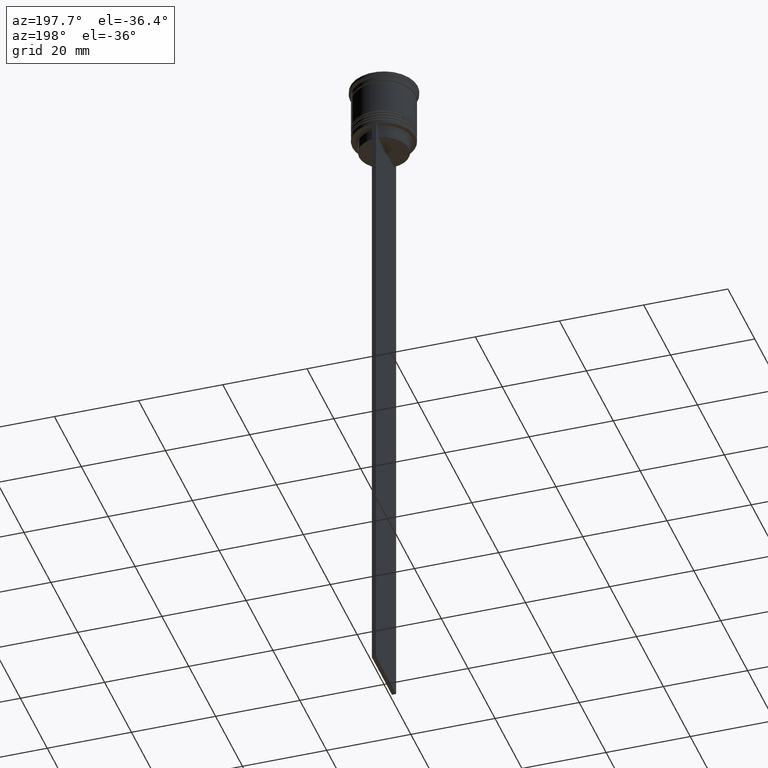
[diagram: clean part render]
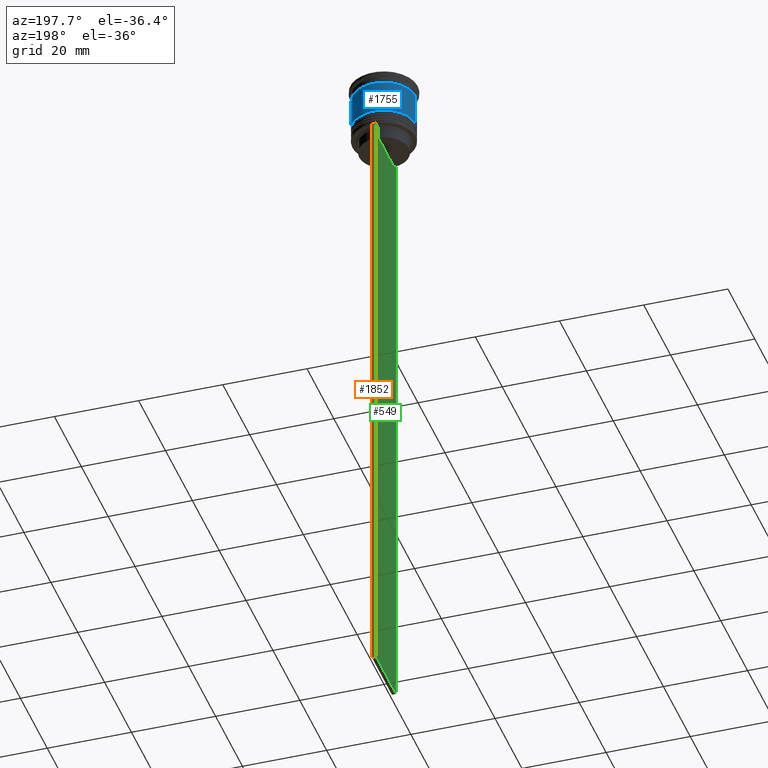
[diagram: same view with three faces highlighted in distinct colors, each labeled with its STEP entity id]
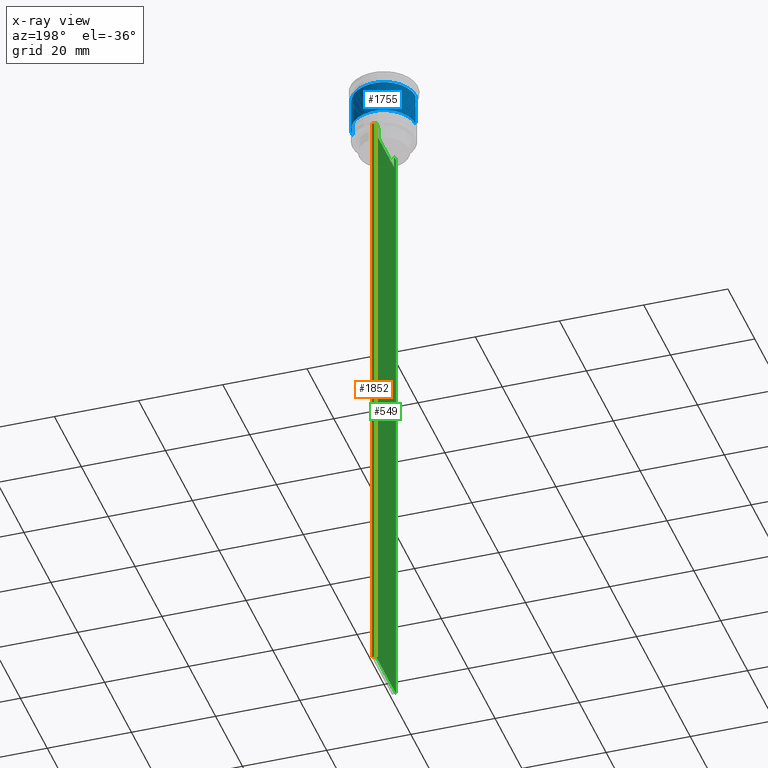
[diagram: x-ray of the same camera — body ghosted, the three highlighted faces saturated]
A machine part, auxiliary view with three faces highlighted in distinct colors.
The next image is the same camera in x-ray (body ghosted, the three faces saturated) — at least one of them is partly hidden behind the body in this view.
Their STEP definitions:

[orange] entity #1852 — the highlighted planar face has unit normal (0, -1, -0).
#215 = VECTOR ( 'NONE', #385, 1000.000000000000000 ) ;
#240 = ORIENTED_EDGE ( 'NONE', *, *, #561, .T. ) ;
#261 = ORIENTED_EDGE ( 'NONE', *, *, #1885, .T. ) ;
#277 = ORIENTED_EDGE ( 'NONE', *, *, #691, .T. ) ;
#287 = VERTEX_POINT ( 'NONE', #789 ) ;
#385 = DIRECTION ( 'NONE',  ( 0.000000000000000000, 0.000000000000000000, -1.000000000000000000 ) ) ;
#483 = DIRECTION ( 'NONE',  ( 1.000000000000000000, 0.000000000000000000, 0.000000000000000000 ) ) ;
#547 = DIRECTION ( 'NONE',  ( 0.000000000000000000, 0.000000000000000000, -1.000000000000000000 ) ) ;
#550 = DIRECTION ( 'NONE',  ( -1.000000000000000000, 0.000000000000000000, 0.000000000000000000 ) ) ;
#561 = EDGE_CURVE ( 'NONE', #932, #1043, #1056, .T. ) ;
#654 = VECTOR ( 'NONE', #550, 1000.000000000000000 ) ;
#683 = CARTESIAN_POINT ( 'NONE',  ( 0.5000000000000000000, 7.500000000000002665, -14.00000000000000178 ) ) ;
#691 = EDGE_CURVE ( 'NONE', #742, #287, #2253, .T. ) ;
#742 = VERTEX_POINT ( 'NONE', #2462 ) ;
#789 = CARTESIAN_POINT ( 'NONE',  ( -0.5000000000000000000, 7.500000000000002665, -163.9999999999999716 ) ) ;
#795 = EDGE_CURVE ( 'NONE', #932, #287, #927, .T. ) ;
#927 = LINE ( 'NONE', #1723, #215 ) ;
#932 = VERTEX_POINT ( 'NONE', #1612 ) ;
#1043 = VERTEX_POINT ( 'NONE', #1065 ) ;
#1056 = LINE ( 'NONE', #683, #2367 ) ;
#1065 = CARTESIAN_POINT ( 'NONE',  ( 0.5000000000000000000, 7.500000000000002665, -14.00000000000000178 ) ) ;
#1150 = VECTOR ( 'NONE', #547, 1000.000000000000000 ) ;
#1227 = FACE_OUTER_BOUND ( 'NONE', #1583, .T. ) ;
#1295 = CARTESIAN_POINT ( 'NONE',  ( 0.5000000000000000000, 7.500000000000002665, 1.033296378372908997 ) ) ;
#1307 = DIRECTION ( 'NONE',  ( 0.000000000000000000, -1.000000000000000000, -0.000000000000000000 ) ) ;
#1310 = CARTESIAN_POINT ( 'NONE',  ( 0.5000000000000000000, 7.500000000000002665, -163.9999999999999716 ) ) ;
#1321 = LINE ( 'NONE', #1295, #1150 ) ;
#1331 = ORIENTED_EDGE ( 'NONE', *, *, #795, .F. ) ;
#1509 = AXIS2_PLACEMENT_3D ( 'NONE', #1894, #1307, #1513 ) ;
#1513 = DIRECTION ( 'NONE',  ( 0.000000000000000000, 0.000000000000000000, -1.000000000000000000 ) ) ;
#1583 = EDGE_LOOP ( 'NONE', ( #1331, #240, #261, #277 ) ) ;
#1612 = CARTESIAN_POINT ( 'NONE',  ( -0.5000000000000000000, 7.500000000000002665, -14.00000000000000178 ) ) ;
#1723 = CARTESIAN_POINT ( 'NONE',  ( -0.5000000000000000000, 7.500000000000002665, 1.033296378372908997 ) ) ;
#1852 = ADVANCED_FACE ( 'NONE', ( #1227 ), #1995, .F. ) ;
#1885 = EDGE_CURVE ( 'NONE', #1043, #742, #1321, .T. ) ;
#1894 = CARTESIAN_POINT ( 'NONE',  ( 0.5000000000000000000, 7.500000000000002665, 1.033296378372908997 ) ) ;
#1995 = PLANE ( 'NONE',  #1509 ) ;
#2253 = LINE ( 'NONE', #1310, #654 ) ;
#2367 = VECTOR ( 'NONE', #483, 1000.000000000000000 ) ;
#2462 = CARTESIAN_POINT ( 'NONE',  ( 0.5000000000000000000, 7.500000000000002665, -163.9999999999999716 ) ) ;

[blue] entity #1755 — the highlighted cylindrical surface (edge-blend (fillet) strip) has radius 7.5 mm, axis along (-0, -0, 1).
#15 = CARTESIAN_POINT ( 'NONE',  ( 0.000000000000000000, 0.000000000000000000, 0.000000000000000000 ) ) ;
#211 = ORIENTED_EDGE ( 'NONE', *, *, #577, .F. ) ;
#216 = EDGE_LOOP ( 'NONE', ( #344, #1059, #211, #985 ) ) ;
#251 = CARTESIAN_POINT ( 'NONE',  ( 0.000000000000000000, 0.000000000000000000, -10.50000000000000000 ) ) ;
#343 = CIRCLE ( 'NONE', #2042, 7.499999999999998224 ) ;
#344 = ORIENTED_EDGE ( 'NONE', *, *, #411, .T. ) ;
#366 = EDGE_CURVE ( 'NONE', #1479, #2133, #1168, .T. ) ;
#411 = EDGE_CURVE ( 'NONE', #1479, #1863, #458, .T. ) ;
#458 = CIRCLE ( 'NONE', #584, 7.500000000000001776 ) ;
#539 = CARTESIAN_POINT ( 'NONE',  ( 7.500000000000000000, 0.000000000000000000, 0.000000000000000000 ) ) ;
#577 = EDGE_CURVE ( 'NONE', #2133, #796, #343, .T. ) ;
#584 = AXIS2_PLACEMENT_3D ( 'NONE', #251, #1421, #1221 ) ;
#610 = FACE_OUTER_BOUND ( 'NONE', #216, .T. ) ;
#796 = VERTEX_POINT ( 'NONE', #1694 ) ;
#901 = DIRECTION ( 'NONE',  ( -0.000000000000000000, -0.000000000000000000, 1.000000000000000000 ) ) ;
#985 = ORIENTED_EDGE ( 'NONE', *, *, #366, .F. ) ;
#1019 = LINE ( 'NONE', #1872, #2411 ) ;
#1059 = ORIENTED_EDGE ( 'NONE', *, *, #2116, .T. ) ;
#1099 = CARTESIAN_POINT ( 'NONE',  ( -7.500000000000001776, 9.184850993605149917E-16, -10.50000000000000000 ) ) ;
#1168 = LINE ( 'NONE', #539, #2165 ) ;
#1221 = DIRECTION ( 'NONE',  ( 1.000000000000000000, 0.000000000000000000, 0.000000000000000000 ) ) ;
#1421 = DIRECTION ( 'NONE',  ( -0.000000000000000000, -0.000000000000000000, 1.000000000000000000 ) ) ;
#1452 = DIRECTION ( 'NONE',  ( -0.000000000000000000, -0.000000000000000000, 1.000000000000000000 ) ) ;
#1479 = VERTEX_POINT ( 'NONE', #2196 ) ;
#1545 = CYLINDRICAL_SURFACE ( 'NONE', #1713, 7.500000000000000000 ) ;
#1581 = DIRECTION ( 'NONE',  ( 1.000000000000000000, 0.000000000000000000, 0.000000000000000000 ) ) ;
#1657 = DIRECTION ( 'NONE',  ( 1.000000000000000000, 0.000000000000000000, 0.000000000000000000 ) ) ;
#1669 = CARTESIAN_POINT ( 'NONE',  ( 7.499999999999998224, 0.000000000000000000, -2.700000000000001510 ) ) ;
#1694 = CARTESIAN_POINT ( 'NONE',  ( -7.499999999999998224, 9.184850993605145972E-16, -2.700000000000001510 ) ) ;
#1713 = AXIS2_PLACEMENT_3D ( 'NONE', #15, #1789, #1581 ) ;
#1755 = ADVANCED_FACE ( 'NONE', ( #610 ), #1545, .T. ) ;
#1789 = DIRECTION ( 'NONE',  ( -0.000000000000000000, -0.000000000000000000, 1.000000000000000000 ) ) ;
#1863 = VERTEX_POINT ( 'NONE', #1099 ) ;
#1872 = CARTESIAN_POINT ( 'NONE',  ( -7.500000000000000000, 9.184850993605147944E-16, 0.000000000000000000 ) ) ;
#2042 = AXIS2_PLACEMENT_3D ( 'NONE', #2061, #1452, #1657 ) ;
#2061 = CARTESIAN_POINT ( 'NONE',  ( 0.000000000000000000, 0.000000000000000000, -2.700000000000001510 ) ) ;
#2116 = EDGE_CURVE ( 'NONE', #1863, #796, #1019, .T. ) ;
#2133 = VERTEX_POINT ( 'NONE', #1669 ) ;
#2165 = VECTOR ( 'NONE', #2330, 1000.000000000000000 ) ;
#2196 = CARTESIAN_POINT ( 'NONE',  ( 7.500000000000001776, 0.000000000000000000, -10.50000000000000000 ) ) ;
#2330 = DIRECTION ( 'NONE',  ( -0.000000000000000000, -0.000000000000000000, 1.000000000000000000 ) ) ;
#2411 = VECTOR ( 'NONE', #901, 1000.000000000000000 ) ;

[green] entity #549 — the highlighted planar face has unit normal (-1, 0, 0).
#42 = CARTESIAN_POINT ( 'NONE',  ( -0.5000000000000000000, 6.380438856379706536, -14.00000000000000178 ) ) ;
#48 = CARTESIAN_POINT ( 'NONE',  ( -0.5000000000000000000, -7.499999999999999112, -14.00000000000000178 ) ) ;
#70 = EDGE_CURVE ( 'NONE', #428, #2248, #2194, .T. ) ;
#86 = LINE ( 'NONE', #409, #1839 ) ;
#120 = B_SPLINE_CURVE_WITH_KNOTS ( 'NONE', 3,
 ( #1444, #2217, #2413, #1465 ),
 .UNSPECIFIED., .F., .F.,
 ( 4, 4 ),
 ( 0.02765270321082434479, 0.02836198271238431559 ),
 .UNSPECIFIED. ) ;
#131 = ORIENTED_EDGE ( 'NONE', *, *, #524, .F. ) ;
#147 = CARTESIAN_POINT ( 'NONE',  ( -0.5000000000000000000, 6.213239387491007015, -14.16668843563492430 ) ) ;
#215 = VECTOR ( 'NONE', #385, 1000.000000000000000 ) ;
#263 = ORIENTED_EDGE ( 'NONE', *, *, #554, .F. ) ;
#265 = CARTESIAN_POINT ( 'NONE',  ( -0.5000000000000000000, -7.499999999999999112, -14.00000000000000178 ) ) ;
#285 = CARTESIAN_POINT ( 'NONE',  ( -0.5000000000000000000, -7.499999999999999112, 1.033296378372908997 ) ) ;
#287 = VERTEX_POINT ( 'NONE', #789 ) ;
#295 = DIRECTION ( 'NONE',  ( -1.000000000000000000, 0.000000000000000000, 0.000000000000000000 ) ) ;
#315 = EDGE_CURVE ( 'NONE', #1884, #905, #1734, .T. ) ;
#325 = CARTESIAN_POINT ( 'NONE',  ( -0.5000000000000000000, 6.380438856379706536, -14.00000000000000178 ) ) ;
#338 = DIRECTION ( 'NONE',  ( 0.000000000000000000, 1.000000000000000000, 0.000000000000000000 ) ) ;
#385 = DIRECTION ( 'NONE',  ( 0.000000000000000000, 0.000000000000000000, -1.000000000000000000 ) ) ;
#392 = CARTESIAN_POINT ( 'NONE',  ( -0.5000000000000000000, -7.499999999999999112, 1.033296378372908997 ) ) ;
#409 = CARTESIAN_POINT ( 'NONE',  ( -0.5000000000000000000, -5.878775382679625849, 0.000000000000000000 ) ) ;
#428 = VERTEX_POINT ( 'NONE', #1032 ) ;
#441 = CARTESIAN_POINT ( 'NONE',  ( -0.5000000000000000000, -5.878775382679625849, -14.50000000000000000 ) ) ;
#445 = DIRECTION ( 'NONE',  ( 0.000000000000000000, 0.000000000000000000, -1.000000000000000000 ) ) ;
#454 = CARTESIAN_POINT ( 'NONE',  ( -0.5000000000000000000, -7.499999999999999112, -14.00000000000000178 ) ) ;
#460 = PLANE ( 'NONE',  #1439 ) ;
#465 = DIRECTION ( 'NONE',  ( 0.000000000000000000, -1.000000000000000000, 0.000000000000000000 ) ) ;
#466 = EDGE_CURVE ( 'NONE', #2248, #1838, #2015, .T. ) ;
#501 = ORIENTED_EDGE ( 'NONE', *, *, #2191, .F. ) ;
#524 = EDGE_CURVE ( 'NONE', #905, #1850, #86, .T. ) ;
#544 = EDGE_CURVE ( 'NONE', #2488, #1884, #2005, .T. ) ;
#549 = ADVANCED_FACE ( 'NONE', ( #2204 ), #460, .T. ) ;
#554 = EDGE_CURVE ( 'NONE', #1850, #428, #120, .T. ) ;
#568 = ORIENTED_EDGE ( 'NONE', *, *, #1269, .F. ) ;
#569 = ORIENTED_EDGE ( 'NONE', *, *, #544, .F. ) ;
#573 = CARTESIAN_POINT ( 'NONE',  ( -0.5000000000000000000, -7.383088784512886527, -14.00000000000000178 ) ) ;
#655 = LINE ( 'NONE', #454, #1746 ) ;
#716 = EDGE_CURVE ( 'NONE', #1891, #287, #1888, .T. ) ;
#717 = VECTOR ( 'NONE', #1696, 1000.000000000000000 ) ;
#789 = CARTESIAN_POINT ( 'NONE',  ( -0.5000000000000000000, 7.500000000000002665, -163.9999999999999716 ) ) ;
#795 = EDGE_CURVE ( 'NONE', #932, #287, #927, .T. ) ;
#813 = DIRECTION ( 'NONE',  ( 0.000000000000000000, -1.000000000000000000, 0.000000000000000000 ) ) ;
#841 = VERTEX_POINT ( 'NONE', #1896 ) ;
#844 = CARTESIAN_POINT ( 'NONE',  ( -0.5000000000000000000, -7.499999999999999112, -14.00000000000000178 ) ) ;
#905 = VERTEX_POINT ( 'NONE', #1601 ) ;
#914 = VECTOR ( 'NONE', #2391, 1000.000000000000000 ) ;
#916 = DIRECTION ( 'NONE',  ( 0.000000000000000000, 0.000000000000000000, 1.000000000000000000 ) ) ;
#927 = LINE ( 'NONE', #1723, #215 ) ;
#932 = VERTEX_POINT ( 'NONE', #1612 ) ;
#1020 = DIRECTION ( 'NONE',  ( -0.000000000000000000, -0.000000000000000000, 1.000000000000000000 ) ) ;
#1028 = LINE ( 'NONE', #392, #1830 ) ;
#1032 = CARTESIAN_POINT ( 'NONE',  ( -0.5000000000000000000, -6.380438856379706536, -14.00000000000000178 ) ) ;
#1053 = ORIENTED_EDGE ( 'NONE', *, *, #1477, .F. ) ;
#1126 = EDGE_CURVE ( 'NONE', #932, #841, #1335, .T. ) ;
#1140 = VECTOR ( 'NONE', #338, 1000.000000000000000 ) ;
#1182 = CARTESIAN_POINT ( 'NONE',  ( -0.5000000000000000000, 5.878775382679625849, -17.00000000000000000 ) ) ;
#1200 = VECTOR ( 'NONE', #813, 1000.000000000000000 ) ;
#1255 = ORIENTED_EDGE ( 'NONE', *, *, #716, .F. ) ;
#1269 = EDGE_CURVE ( 'NONE', #1838, #1891, #1028, .T. ) ;
#1335 = LINE ( 'NONE', #1692, #2440 ) ;
#1439 = AXIS2_PLACEMENT_3D ( 'NONE', #285, #295, #916 ) ;
#1444 = CARTESIAN_POINT ( 'NONE',  ( -0.5000000000000000000, -5.878775382679625849, -14.50000000000000000 ) ) ;
#1465 = CARTESIAN_POINT ( 'NONE',  ( -0.5000000000000000000, -6.380438856379706536, -14.00000000000000178 ) ) ;
#1477 = EDGE_CURVE ( 'NONE', #841, #2351, #655, .T. ) ;
#1526 = CARTESIAN_POINT ( 'NONE',  ( -0.5000000000000000000, 6.046020074006152711, -14.33335695351623151 ) ) ;
#1537 = DIRECTION ( 'NONE',  ( 0.000000000000000000, -1.000000000000000000, 0.000000000000000000 ) ) ;
#1554 = EDGE_LOOP ( 'NONE', ( #501, #1053, #1643, #2016, #1255, #568, #1902, #2298, #263, #131, #2493, #569 ) ) ;
#1598 = CARTESIAN_POINT ( 'NONE',  ( -0.5000000000000000000, 5.878775382679625849, -14.50000000000000000 ) ) ;
#1601 = CARTESIAN_POINT ( 'NONE',  ( -0.5000000000000000000, -5.878775382679625849, -17.00000000000000000 ) ) ;
#1612 = CARTESIAN_POINT ( 'NONE',  ( -0.5000000000000000000, 7.500000000000002665, -14.00000000000000178 ) ) ;
#1616 = CARTESIAN_POINT ( 'NONE',  ( -0.5000000000000000000, 5.878775382679625849, 0.000000000000000000 ) ) ;
#1643 = ORIENTED_EDGE ( 'NONE', *, *, #1126, .F. ) ;
#1692 = CARTESIAN_POINT ( 'NONE',  ( -0.5000000000000000000, -7.499999999999999112, -14.00000000000000178 ) ) ;
#1696 = DIRECTION ( 'NONE',  ( 0.000000000000000000, -1.000000000000000000, 0.000000000000000000 ) ) ;
#1723 = CARTESIAN_POINT ( 'NONE',  ( -0.5000000000000000000, 7.500000000000002665, 1.033296378372908997 ) ) ;
#1734 = LINE ( 'NONE', #2494, #717 ) ;
#1746 = VECTOR ( 'NONE', #465, 1000.000000000000000 ) ;
#1760 = CARTESIAN_POINT ( 'NONE',  ( -0.5000000000000000000, -7.499999999999999112, -163.9999999999999716 ) ) ;
#1823 = DIRECTION ( 'NONE',  ( 0.000000000000000000, -1.000000000000000000, 0.000000000000000000 ) ) ;
#1830 = VECTOR ( 'NONE', #445, 1000.000000000000000 ) ;
#1838 = VERTEX_POINT ( 'NONE', #844 ) ;
#1839 = VECTOR ( 'NONE', #1020, 1000.000000000000000 ) ;
#1850 = VERTEX_POINT ( 'NONE', #441 ) ;
#1884 = VERTEX_POINT ( 'NONE', #1182 ) ;
#1888 = LINE ( 'NONE', #2305, #1140 ) ;
#1891 = VERTEX_POINT ( 'NONE', #1760 ) ;
#1896 = CARTESIAN_POINT ( 'NONE',  ( -0.5000000000000000000, 7.383088784512886527, -14.00000000000000178 ) ) ;
#1902 = ORIENTED_EDGE ( 'NONE', *, *, #466, .F. ) ;
#2005 = LINE ( 'NONE', #1616, #914 ) ;
#2015 = LINE ( 'NONE', #48, #1200 ) ;
#2016 = ORIENTED_EDGE ( 'NONE', *, *, #795, .T. ) ;
#2025 = CARTESIAN_POINT ( 'NONE',  ( -0.5000000000000000000, 5.878775382679625849, -14.50000000000000000 ) ) ;
#2191 = EDGE_CURVE ( 'NONE', #2351, #2488, #2214, .T. ) ;
#2194 = LINE ( 'NONE', #265, #2399 ) ;
#2204 = FACE_OUTER_BOUND ( 'NONE', #1554, .T. ) ;
#2214 = B_SPLINE_CURVE_WITH_KNOTS ( 'NONE', 3,
 ( #325, #147, #1526, #2025 ),
 .UNSPECIFIED., .F., .F.,
 ( 4, 4 ),
 ( 0.01087727669788152163, 0.01158556069794289788 ),
 .UNSPECIFIED. ) ;
#2217 = CARTESIAN_POINT ( 'NONE',  ( -0.5000000000000000000, -6.046019991840948293, -14.33335703538585726 ) ) ;
#2248 = VERTEX_POINT ( 'NONE', #573 ) ;
#2298 = ORIENTED_EDGE ( 'NONE', *, *, #70, .F. ) ;
#2305 = CARTESIAN_POINT ( 'NONE',  ( -0.5000000000000000000, -7.499999999999999112, -163.9999999999999716 ) ) ;
#2351 = VERTEX_POINT ( 'NONE', #42 ) ;
#2391 = DIRECTION ( 'NONE',  ( 0.000000000000000000, 0.000000000000000000, -1.000000000000000000 ) ) ;
#2399 = VECTOR ( 'NONE', #1823, 1000.000000000000000 ) ;
#2413 = CARTESIAN_POINT ( 'NONE',  ( -0.5000000000000000000, -6.213239311785844876, -14.16668851110870087 ) ) ;
#2440 = VECTOR ( 'NONE', #1537, 1000.000000000000000 ) ;
#2488 = VERTEX_POINT ( 'NONE', #1598 ) ;
#2493 = ORIENTED_EDGE ( 'NONE', *, *, #315, .F. ) ;
#2494 = CARTESIAN_POINT ( 'NONE',  ( -0.5000000000000000000, 5.899999999999998579, -17.00000000000000000 ) ) ;